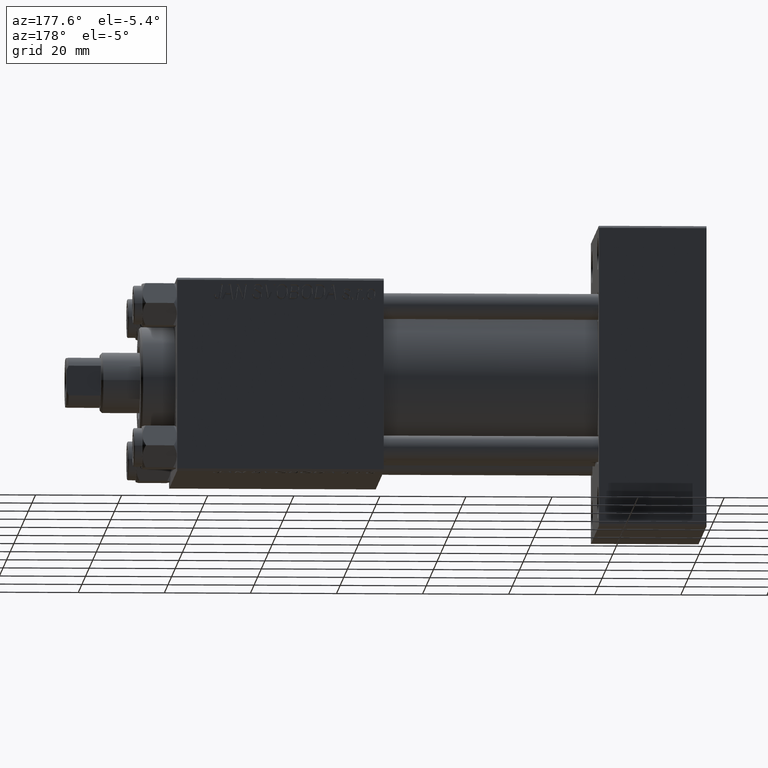
[diagram: clean part render]
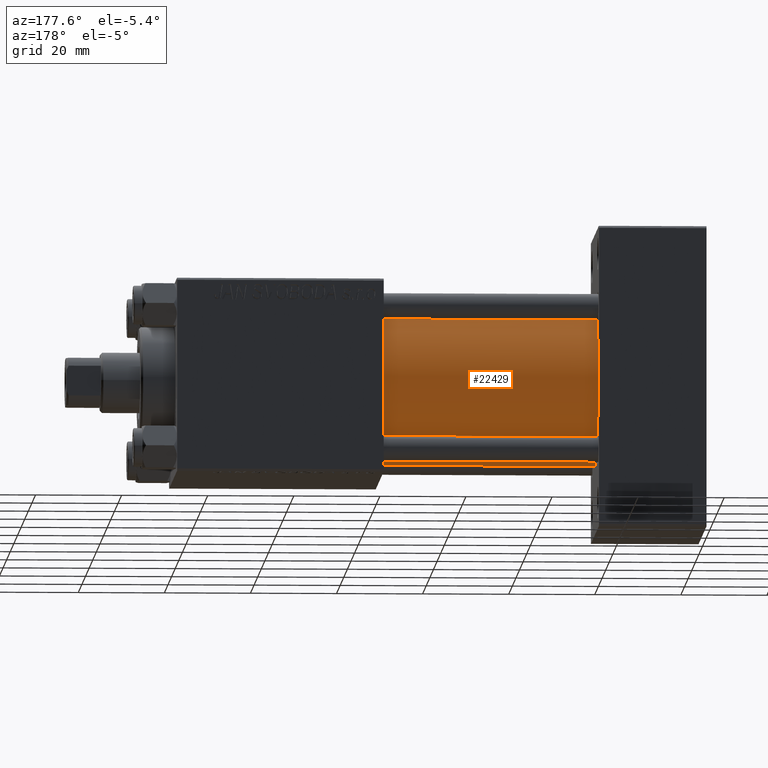
[diagram: same view with one face highlighted and labeled with its STEP entity id]
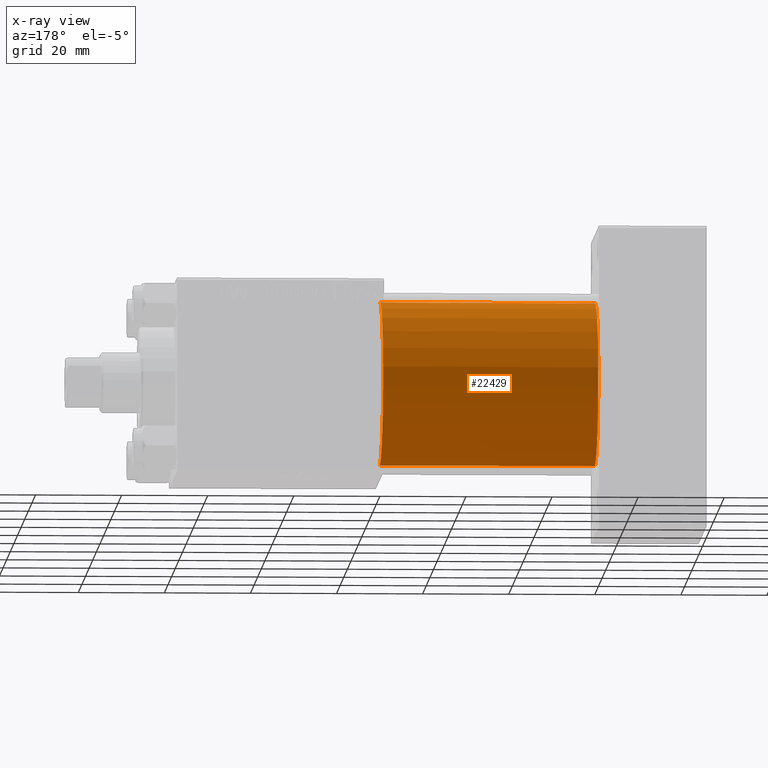
[diagram: x-ray of the same camera — body ghosted, the highlighted face saturated]
A machine part, auxiliary view. The second image highlights one B-rep face of the part: STEP entity #22429.
The next image is the same camera in x-ray: the body ghosted, the highlighted face saturated — about 0% of this face is hidden behind the body in this view.
In plain terms, the highlighted cylindrical surface (partial cylindrical patch) has radius 19 mm, axis along (-1, -0, -0).
Its self-contained STEP definition (entity closure, byte-faithful):
#929 = AXIS2_PLACEMENT_3D ( 'NONE', #3633, #46799, #42018 ) ;
#930 = VERTEX_POINT ( 'NONE', #47957 ) ;
#1565 = EDGE_CURVE ( 'NONE', #35349, #21646, #32176, .T. ) ;
#3633 = CARTESIAN_POINT ( 'NONE',  ( 75.00000000000001421, -2.602085213965210642E-15, 0.000000000000000000 ) ) ;
#7563 = FACE_OUTER_BOUND ( 'NONE', #30107, .T. ) ;
#8002 = AXIS2_PLACEMENT_3D ( 'NONE', #22947, #39353, #31268 ) ;
#8900 = CIRCLE ( 'NONE', #15328, 19.00000000000000000 ) ;
#8903 = LINE ( 'NONE', #16200, #36793 ) ;
#9213 = DIRECTION ( 'NONE',  ( -1.000000000000000000, -0.000000000000000000, -0.000000000000000000 ) ) ;
#9388 = DIRECTION ( 'NONE',  ( -1.000000000000000000, -0.000000000000000000, -0.000000000000000000 ) ) ;
#11325 = CARTESIAN_POINT ( 'NONE',  ( 25.00000000000000000, -2.752562955852396712E-16, -19.00000000000000000 ) ) ;
#15328 = AXIS2_PLACEMENT_3D ( 'NONE', #26980, #34053, #21930 ) ;
#15862 = CYLINDRICAL_SURFACE ( 'NONE', #8002, 19.00000000000000000 ) ;
#16200 = CARTESIAN_POINT ( 'NONE',  ( 75.00000000000001421, -2.602085213965210642E-15, 19.00000000000000000 ) ) ;
#21646 = VERTEX_POINT ( 'NONE', #11325 ) ;
#21930 = DIRECTION ( 'NONE',  ( 0.000000000000000000, 0.000000000000000000, 1.000000000000000000 ) ) ;
#22429 = ADVANCED_FACE ( 'NONE', ( #7563 ), #15862, .T. ) ;
#22947 = CARTESIAN_POINT ( 'NONE',  ( 75.00000000000001421, -2.602085213965210642E-15, 0.000000000000000000 ) ) ;
#24210 = ORIENTED_EDGE ( 'NONE', *, *, #27546, .T. ) ;
#26220 = CARTESIAN_POINT ( 'NONE',  ( 75.00000000000001421, -2.752562955852396712E-16, -19.00000000000000000 ) ) ;
#26980 = CARTESIAN_POINT ( 'NONE',  ( 25.00000000000000000, -2.602085213965210642E-15, 0.000000000000000000 ) ) ;
#27546 = EDGE_CURVE ( 'NONE', #21646, #41351, #8900, .T. ) ;
#30050 = ORIENTED_EDGE ( 'NONE', *, *, #1565, .T. ) ;
#30107 = EDGE_LOOP ( 'NONE', ( #44884, #30050, #24210, #41602 ) ) ;
#30776 = EDGE_CURVE ( 'NONE', #35349, #930, #36410, .T. ) ;
#31268 = DIRECTION ( 'NONE',  ( 0.000000000000000000, 0.000000000000000000, 1.000000000000000000 ) ) ;
#32176 = LINE ( 'NONE', #47600, #47757 ) ;
#34053 = DIRECTION ( 'NONE',  ( 1.000000000000000000, -0.000000000000000000, 0.000000000000000000 ) ) ;
#35349 = VERTEX_POINT ( 'NONE', #26220 ) ;
#36410 = CIRCLE ( 'NONE', #929, 19.00000000000000000 ) ;
#36793 = VECTOR ( 'NONE', #9388, 1000.000000000000000 ) ;
#39353 = DIRECTION ( 'NONE',  ( -1.000000000000000000, -0.000000000000000000, -0.000000000000000000 ) ) ;
#41351 = VERTEX_POINT ( 'NONE', #49492 ) ;
#41602 = ORIENTED_EDGE ( 'NONE', *, *, #45074, .F. ) ;
#42018 = DIRECTION ( 'NONE',  ( 0.000000000000000000, 0.000000000000000000, -1.000000000000000000 ) ) ;
#44884 = ORIENTED_EDGE ( 'NONE', *, *, #30776, .F. ) ;
#45074 = EDGE_CURVE ( 'NONE', #930, #41351, #8903, .T. ) ;
#46799 = DIRECTION ( 'NONE',  ( 1.000000000000000000, 0.000000000000000000, 0.000000000000000000 ) ) ;
#47600 = CARTESIAN_POINT ( 'NONE',  ( 75.00000000000001421, -2.752562955852396712E-16, -19.00000000000000000 ) ) ;
#47757 = VECTOR ( 'NONE', #9213, 1000.000000000000000 ) ;
#47957 = CARTESIAN_POINT ( 'NONE',  ( 75.00000000000001421, -2.602085213965210642E-15, 19.00000000000000000 ) ) ;
#49492 = CARTESIAN_POINT ( 'NONE',  ( 25.00000000000000000, -2.602085213965210642E-15, 19.00000000000000000 ) ) ;